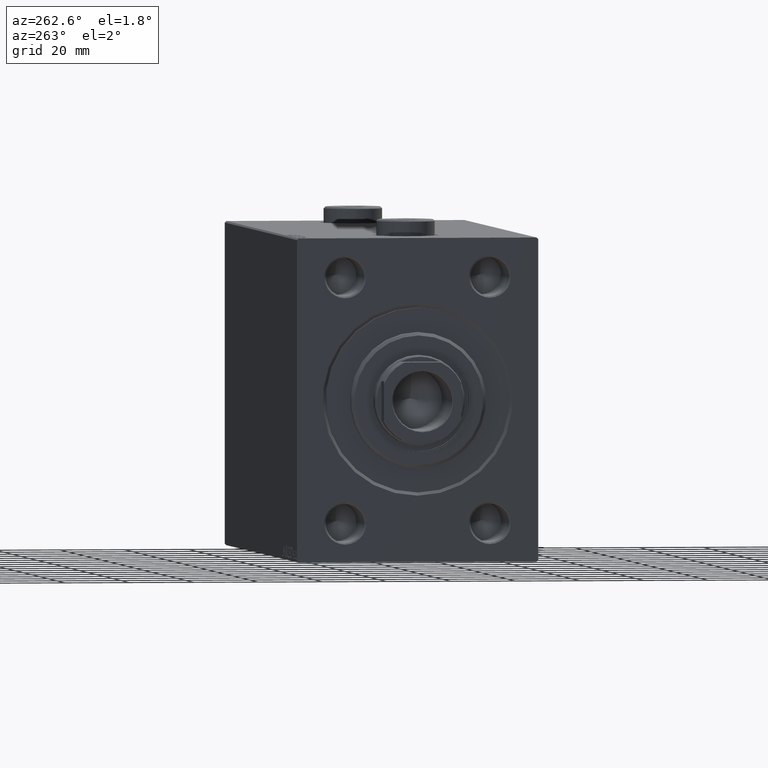
[diagram: clean part render]
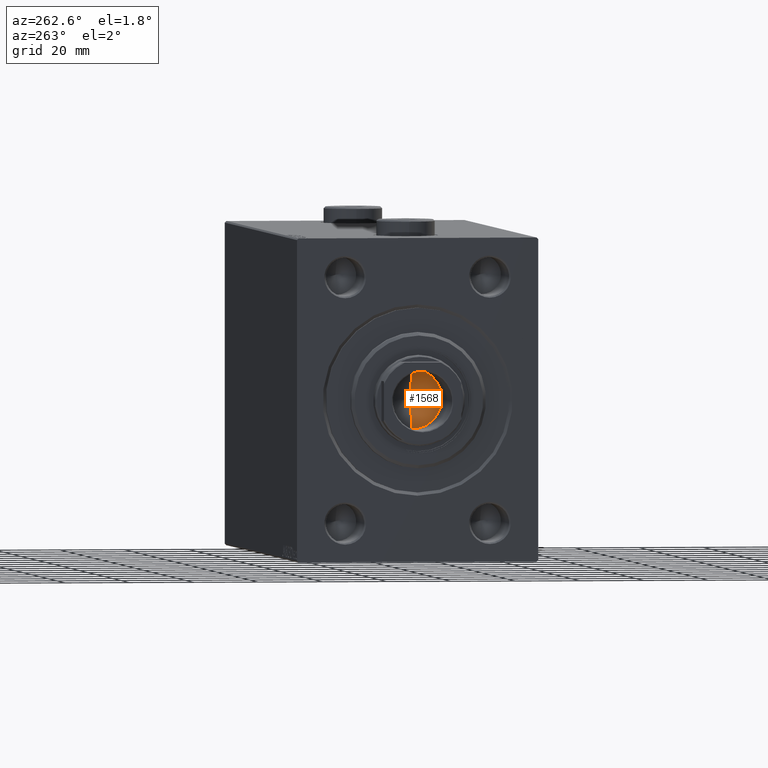
[diagram: same view with one face highlighted and labeled with its STEP entity id]
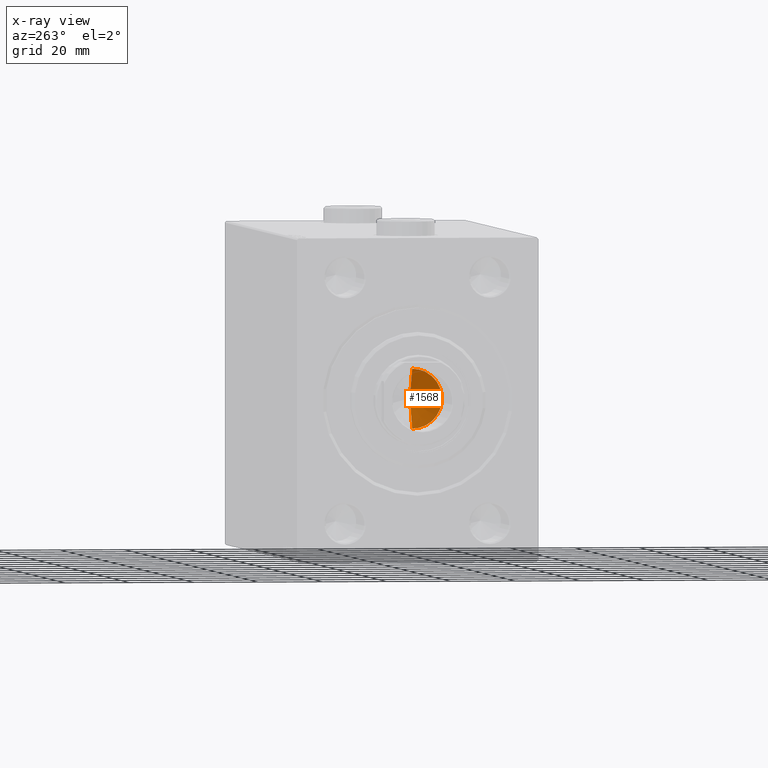
[diagram: x-ray of the same camera — body ghosted, the highlighted face saturated]
A machine part, auxiliary view. The second image highlights one B-rep face of the part: STEP entity #1568.
The next image is the same camera in x-ray: the body ghosted, the highlighted face saturated — about 0% of this face is hidden behind the body in this view.
In plain terms, the highlighted conical surface has half-angle 59 deg.
Its self-contained STEP definition (entity closure, byte-faithful):
#1568 = ADVANCED_FACE ( 'NONE', ( #32779 ), #29164, .F. ) ;
#1649 = DIRECTION ( 'NONE',  ( -0.000000000000000000, -0.000000000000000000, 1.000000000000000000 ) ) ;
#4117 = VECTOR ( 'NONE', #29614, 1000.000000000000000 ) ;
#11992 = VERTEX_POINT ( 'NONE', #43071 ) ;
#12395 = CIRCLE ( 'NONE', #23450, 9.249999999999994671 ) ;
#12576 = VERTEX_POINT ( 'NONE', #30379 ) ;
#15141 = AXIS2_PLACEMENT_3D ( 'NONE', #40400, #33234, #37159 ) ;
#17716 = EDGE_CURVE ( 'NONE', #12576, #11992, #33075, .T. ) ;
#17767 = EDGE_CURVE ( 'NONE', #12576, #37855, #22899, .T. ) ;
#19670 = DIRECTION ( 'NONE',  ( -0.8571673007021113344, 1.049727191138617463E-16, 0.5150380749100558209 ) ) ;
#22899 = LINE ( 'NONE', #40698, #4117 ) ;
#23450 = AXIS2_PLACEMENT_3D ( 'NONE', #35180, #1649, #26128 ) ;
#23787 = EDGE_CURVE ( 'NONE', #11992, #37855, #12395, .T. ) ;
#24731 = ORIENTED_EDGE ( 'NONE', *, *, #23787, .T. ) ;
#24942 = ORIENTED_EDGE ( 'NONE', *, *, #17716, .T. ) ;
#26128 = DIRECTION ( 'NONE',  ( 1.000000000000000000, 0.000000000000000000, 0.000000000000000000 ) ) ;
#26947 = EDGE_LOOP ( 'NONE', ( #37154, #24942, #24731 ) ) ;
#27702 = VECTOR ( 'NONE', #19670, 1000.000000000000000 ) ;
#29164 = CONICAL_SURFACE ( 'NONE', #15141, 9.249999999999994671, 1.029744258676652535 ) ;
#29614 = DIRECTION ( 'NONE',  ( 0.8571673007021113344, 0.000000000000000000, 0.5150380749100558209 ) ) ;
#30379 = CARTESIAN_POINT ( 'NONE',  ( -6.793016015247754405E-15, 0.000000000000000000, 140.4420392739950501 ) ) ;
#32779 = FACE_OUTER_BOUND ( 'NONE', #26947, .T. ) ;
#33075 = LINE ( 'NONE', #43954, #27702 ) ;
#33234 = DIRECTION ( 'NONE',  ( -0.000000000000000000, -0.000000000000000000, 1.000000000000000000 ) ) ;
#34364 = CARTESIAN_POINT ( 'NONE',  ( 9.249999999999994671, 0.000000000000000000, 146.0000000000000000 ) ) ;
#35180 = CARTESIAN_POINT ( 'NONE',  ( 0.000000000000000000, 0.000000000000000000, 146.0000000000000000 ) ) ;
#37154 = ORIENTED_EDGE ( 'NONE', *, *, #17767, .F. ) ;
#37159 = DIRECTION ( 'NONE',  ( 1.000000000000000000, 0.000000000000000000, 0.000000000000000000 ) ) ;
#37855 = VERTEX_POINT ( 'NONE', #34364 ) ;
#40400 = CARTESIAN_POINT ( 'NONE',  ( 0.000000000000000000, 0.000000000000000000, 146.0000000000000000 ) ) ;
#40698 = CARTESIAN_POINT ( 'NONE',  ( 9.249999999999994671, 0.000000000000000000, 146.0000000000000000 ) ) ;
#43071 = CARTESIAN_POINT ( 'NONE',  ( -9.249999999999994671, 1.132798289211300909E-15, 146.0000000000000000 ) ) ;
#43954 = CARTESIAN_POINT ( 'NONE',  ( -9.249999999999994671, 1.132798289211300909E-15, 146.0000000000000000 ) ) ;